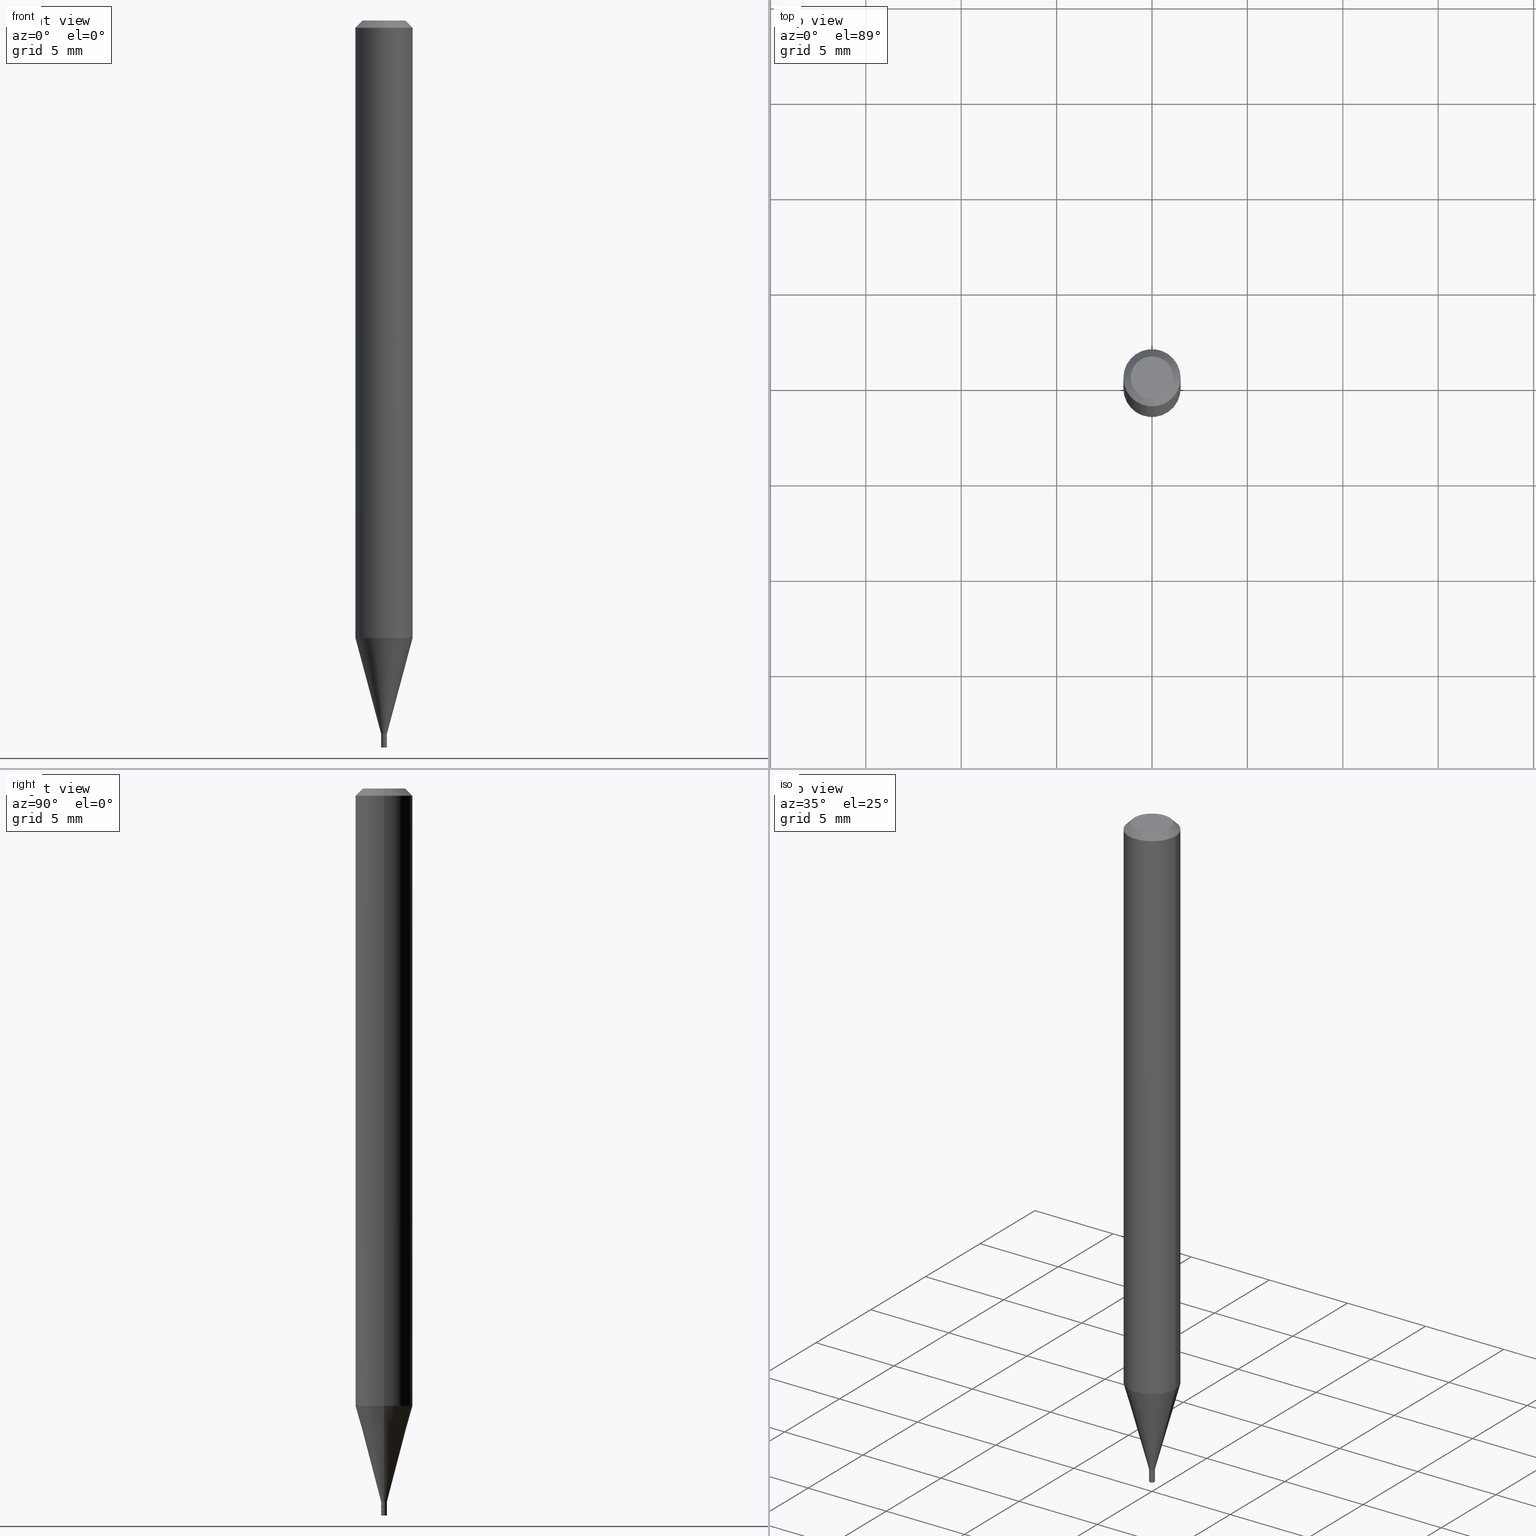
[diagram: canonical four-view strip — front | top / right | iso, engineering-drawing reading convention]
A machine part, canonical four-view strip (front | top / right | iso — engineering-drawing reading convention). The complete STEP part file that produces these views, byte-faithful:
ISO-10303-21;
HEADER;
FILE_DESCRIPTION (( 'STEP AP203' ),
    '1' );
FILE_NAME ('02802.STEP',
    '2024-03-18T21:39:55',
    ( '' ),
    ( '' ),
    'SwSTEP 2.0',
    'SolidWorks 2023',
    '' );
FILE_SCHEMA (( 'CONFIG_CONTROL_DESIGN' ));
ENDSEC;

DATA;
#1 = CARTESIAN_POINT ( 'NONE',  ( 3.576687321579069994E-29, -5.368277968210015545E-15, -1.500000000000000222 ) ) ;
#2 = FACE_OUTER_BOUND ( 'NONE', #52, .T. ) ;
#3 = EDGE_CURVE ( 'NONE', #388, #336, #301, .T. ) ;
#4 = VERTEX_POINT ( 'NONE', #42 ) ;
#5 = VECTOR ( 'NONE', #249, 39.37007874015748143 ) ;
#6 = DATE_TIME_ROLE ( 'creation_date' ) ;
#7 = DATE_AND_TIME ( #403, #11 ) ;
#8 = FACE_OUTER_BOUND ( 'NONE', #331, .T. ) ;
#9 = CARTESIAN_POINT ( 'NONE',  ( -0.05904999999999999832, 3.599717260347268549E-16, -0.01499999999999999944 ) ) ;
#10 = AXIS2_PLACEMENT_3D ( 'NONE', #203, #418, #379 ) ;
#11 = LOCAL_TIME ( 17, 39, 55.00000000000000000, #337 ) ;
#12 = VERTEX_POINT ( 'NONE', #368 ) ;
#13 = LINE ( 'NONE', #9, #46 ) ;
#14 = APPLICATION_CONTEXT ( 'configuration controlled 3d designs of mechanical parts and assemblies' ) ;
#15 = VECTOR ( 'NONE', #371, 39.37007874015748143 ) ;
#16 = CARTESIAN_POINT ( 'NONE',  ( 3.075995059520799729E-16, 0.04404999999999999888, 2.027928670396002547E-16 ) ) ;
#17 = CIRCLE ( 'NONE', #238, 0.005899999999999920065 ) ;
#18 = ORIENTED_EDGE ( 'NONE', *, *, #384, .T. ) ;
#19 = PRODUCT_DEFINITION ( 'UNKNOWN', '', #41, #71 ) ;
#20 = PERSON_AND_ORGANIZATION ( #442, #383 ) ;
#21 = VERTEX_POINT ( 'NONE', #438 ) ;
#22 = APPROVAL_STATUS ( 'not_yet_approved' ) ;
#23 = ORIENTED_EDGE ( 'NONE', *, *, #305, .T. ) ;
#24 = ORIENTED_EDGE ( 'NONE', *, *, #305, .F. ) ;
#25 = APPROVAL_PERSON_ORGANIZATION ( #300, #228, #204 ) ;
#26 = LENGTH_MEASURE_WITH_UNIT ( LENGTH_MEASURE( 0.02539999999999999897 ), #356 );
#27 = DIRECTION ( 'NONE',  ( 1.000000000000000000, -6.982962677686265922E-15, 4.876176775795935793E-29 ) ) ;
#28 = DIRECTION ( 'NONE',  ( -2.445468806185136597E-29, 3.491481338843145583E-15, 1.000000000000000000 ) ) ;
#29 = CARTESIAN_POINT ( 'NONE',  ( 3.668203209277705088E-31, -5.237222008264718399E-17, -0.01499999999999999944 ) ) ;
#30 = DIRECTION ( 'NONE',  ( -2.445468806185136597E-29, 3.491481338843145583E-15, 1.000000000000000000 ) ) ;
#31 = CARTESIAN_POINT ( 'NONE',  ( 3.624918411408228243E-29, -5.175422788567195373E-15, -1.482300000000000173 ) ) ;
#32 = AXIS2_PLACEMENT_3D ( 'NONE', #188, #289, #72 ) ;
#33 = CIRCLE ( 'NONE', #219, 0.005899999999999922667 ) ;
#34 = CC_DESIGN_PERSON_AND_ORGANIZATION_ASSIGNMENT ( #198, #166, ( #41 ) ) ;
#35 = LINE ( 'NONE', #330, #452 ) ;
#36 = EDGE_CURVE ( 'NONE', #108, #239, #361, .T. ) ;
#37 = ORIENTED_EDGE ( 'NONE', *, *, #36, .T. ) ;
#38 = EDGE_LOOP ( 'NONE', ( #314, #416, #186, #319 ) ) ;
#39 = EDGE_CURVE ( 'NONE', #215, #179, #400, .T. ) ;
#40 = CIRCLE ( 'NONE', #10, 0.005900000000000000730 ) ;
#41 = PRODUCT_DEFINITION_FORMATION_WITH_SPECIFIED_SOURCE ( 'ANY', '', #458, .NOT_KNOWN. ) ;
#42 = CARTESIAN_POINT ( 'NONE',  ( -0.005400000000000000286, -5.134404253662039043E-15, -1.482300000000000173 ) ) ;
#43 = ORIENTED_EDGE ( 'NONE', *, *, #273, .T. ) ;
#44 = DIRECTION ( 'NONE',  ( 1.000000000000000000, -6.982962677686312464E-15, 0.000000000000000000 ) ) ;
#45 = CARTESIAN_POINT ( 'NONE',  ( 3.599730082704520905E-29, -5.139460530777110821E-15, -1.471999999999999975 ) ) ;
#46 = VECTOR ( 'NONE', #127, 39.37007874015748854 ) ;
#47 =( GEOMETRIC_REPRESENTATION_CONTEXT ( 3 ) GLOBAL_UNCERTAINTY_ASSIGNED_CONTEXT ( ( #148 ) ) GLOBAL_UNIT_ASSIGNED_CONTEXT ( ( #221, #151, #281 ) ) REPRESENTATION_CONTEXT ( 'NONE', 'WORKASPACE' ) );
#48 = EDGE_CURVE ( 'NONE', #104, #179, #13, .T. ) ;
#49 = DATE_AND_TIME ( #162, #290 ) ;
#50 = FACE_OUTER_BOUND ( 'NONE', #95, .T. ) ;
#51 = EDGE_LOOP ( 'NONE', ( #274, #455 ) ) ;
#52 = EDGE_LOOP ( 'NONE', ( #410, #443 ) ) ;
#53 = DIRECTION ( 'NONE',  ( -2.445468806185136597E-29, 3.491481338843145583E-15, 1.000000000000000000 ) ) ;
#54 = EDGE_CURVE ( 'NONE', #175, #21, #165, .T. ) ;
#55 = EDGE_CURVE ( 'NONE', #108, #21, #270, .T. ) ;
#56 = EDGE_CURVE ( 'NONE', #104, #427, #451, .T. ) ;
#57 = CIRCLE ( 'NONE', #253, 0.005900000000000000730 ) ;
#58 = DIRECTION ( 'NONE',  ( 1.000000000000000000, -6.982962677686265922E-15, 4.876176775795935793E-29 ) ) ;
#59 = AXIS2_PLACEMENT_3D ( 'NONE', #110, #213, #389 ) ;
#60 = ORIENTED_EDGE ( 'NONE', *, *, #273, .F. ) ;
#61 = EDGE_LOOP ( 'NONE', ( #122, #212, #247, #262 ) ) ;
#62 = DIRECTION ( 'NONE',  ( -2.445468806185136597E-29, 3.491481338843145583E-15, 1.000000000000000000 ) ) ;
#63 = EDGE_LOOP ( 'NONE', ( #91, #399, #136, #354 ) ) ;
#64 = CC_DESIGN_PERSON_AND_ORGANIZATION_ASSIGNMENT ( #265, #125, ( #41 ) ) ;
#65 = DIRECTION ( 'NONE',  ( -1.000000000000000000, 6.982962677686265922E-15, -4.876176775795935793E-29 ) ) ;
#66 = MECHANICAL_CONTEXT ( 'NONE', #338, 'mechanical' ) ;
#67 = CARTESIAN_POINT ( 'NONE',  ( -0.005899999999999920065, -4.562429276026358128E-15, -1.471999999999999975 ) ) ;
#68 = AXIS2_PLACEMENT_3D ( 'NONE', #369, #343, #44 ) ;
#69 = CIRCLE ( 'NONE', #447, 0.005400000000000000286 ) ;
#70 = CARTESIAN_POINT ( 'NONE',  ( 3.624918411408228243E-29, -5.175422788567195373E-15, -1.482300000000000173 ) ) ;
#71 = DESIGN_CONTEXT ( 'detailed design', #14, 'design' ) ;
#72 = DIRECTION ( 'NONE',  ( 1.000000000000000000, -6.982962677686266711E-15, 4.876176775795935793E-29 ) ) ;
#73 = DATE_AND_TIME ( #121, #254 ) ;
#74 = CARTESIAN_POINT ( 'NONE',  ( 3.623695677005136002E-29, -5.173677047897773869E-15, -1.481800000000000228 ) ) ;
#75 = EDGE_CURVE ( 'NONE', #12, #388, #181, .T. ) ;
#76 = DIRECTION ( 'NONE',  ( 1.000000000000000000, -6.982962677686217012E-15, 0.000000000000000000 ) ) ;
#77 = MANIFOLD_SOLID_BREP ( 'Body-Move/Copy2[2]', #311 ) ;
#78 = ORIENTED_EDGE ( 'NONE', *, *, #109, .F. ) ;
#79 = DIRECTION ( 'NONE',  ( -2.445468806185136597E-29, 3.491481338843145583E-15, 1.000000000000000000 ) ) ;
#80 = AXIS2_PLACEMENT_3D ( 'NONE', #1, #390, #27 ) ;
#81 = CC_DESIGN_SECURITY_CLASSIFICATION ( #373, ( #41 ) ) ;
#82 = EDGE_CURVE ( 'NONE', #4, #348, #101, .T. ) ;
#83 = ORIENTED_EDGE ( 'NONE', *, *, #364, .F. ) ;
#84 = PERSON_AND_ORGANIZATION ( #442, #383 ) ;
#85 = MANIFOLD_SOLID_BREP ( 'Body-Move/Copy2[1]', #406 ) ;
#86 = SHAPE_DEFINITION_REPRESENTATION ( #413, #170 ) ;
#87 = ORIENTED_EDGE ( 'NONE', *, *, #445, .F. ) ;
#88 = PERSON_AND_ORGANIZATION ( #442, #383 ) ;
#89 = VERTEX_POINT ( 'NONE', #130 ) ;
#90 = CARTESIAN_POINT ( 'NONE',  ( -1.744072257528158594E-44, 2.490072956707589401E-30, 7.131852400312816162E-16 ) ) ;
#91 = ORIENTED_EDGE ( 'NONE', *, *, #236, .F. ) ;
#92 = PERSON_AND_ORGANIZATION_ROLE ( 'classification_officer' ) ;
#93 = EDGE_CURVE ( 'NONE', #336, #309, #40, .T. ) ;
#94 = DIRECTION ( 'NONE',  ( -2.445468806185136597E-29, 3.491481338843145583E-15, 1.000000000000000000 ) ) ;
#95 = EDGE_LOOP ( 'NONE', ( #457, #43 ) ) ;
#96 = PLANE ( 'NONE',  #185 ) ;
#97 = EDGE_LOOP ( 'NONE', ( #402, #376, #378, #386 ) ) ;
#98 = ADVANCED_FACE ( 'NONE', ( #341 ), #99, .T. ) ;
#99 = CYLINDRICAL_SURFACE ( 'NONE', #115, 0.05904999999999999832 ) ;
#100 = DIRECTION ( 'NONE',  ( -1.000000000000000000, 6.982962677686265922E-15, -4.876176775795935793E-29 ) ) ;
#101 = CIRCLE ( 'NONE', #232, 0.005400000000000000286 ) ;
#102 = DIRECTION ( 'NONE',  ( -2.445468806185136877E-29, 3.491481338843145188E-15, 1.000000000000000000 ) ) ;
#103 = VECTOR ( 'NONE', #359, 39.37007874015748854 ) ;
#104 = VERTEX_POINT ( 'NONE', #180 ) ;
#105 = EDGE_CURVE ( 'NONE', #309, #336, #57, .T. ) ;
#106 = CARTESIAN_POINT ( 'NONE',  ( 4.119947979838522629E-17, 0.005899999999994825182, -1.482300000000000173 ) ) ;
#107 = DIRECTION ( 'NONE',  ( -2.445468806185136597E-29, 3.491481338843145583E-15, 1.000000000000000000 ) ) ;
#108 = VERTEX_POINT ( 'NONE', #295 ) ;
#109 = EDGE_CURVE ( 'NONE', #89, #239, #437, .T. ) ;
#110 = CARTESIAN_POINT ( 'NONE',  ( 0.000000000000000000, 0.000000000000000000, 0.000000000000000000 ) ) ;
#111 = DIRECTION ( 'NONE',  ( -2.445468806185136597E-29, 3.491481338843145583E-15, 1.000000000000000000 ) ) ;
#112 = FACE_OUTER_BOUND ( 'NONE', #230, .T. ) ;
#113 = LINE ( 'NONE', #358, #415 ) ;
#114 = DIMENSIONAL_EXPONENTS ( 1.000000000000000000, 0.000000000000000000, 0.000000000000000000, 0.000000000000000000, 0.000000000000000000, 0.000000000000000000, 0.000000000000000000 ) ;
#115 = AXIS2_PLACEMENT_3D ( 'NONE', #241, #53, #396 ) ;
#116 = AXIS2_PLACEMENT_3D ( 'NONE', #214, #119, #353 ) ;
#117 = CC_DESIGN_PERSON_AND_ORGANIZATION_ASSIGNMENT ( #20, #210, ( #458 ) ) ;
#118 = CARTESIAN_POINT ( 'NONE',  ( 3.623695677005136002E-29, -5.173677047897773869E-15, -1.481800000000000228 ) ) ;
#119 = DIRECTION ( 'NONE',  ( -2.445468806185136597E-29, 3.491481338843145583E-15, 1.000000000000000000 ) ) ;
#120 = DIRECTION ( 'NONE',  ( -2.445468806185136877E-29, 3.491481338843145188E-15, 1.000000000000000000 ) ) ;
#121 = CALENDAR_DATE ( 2024, 18, 3 ) ;
#122 = ORIENTED_EDGE ( 'NONE', *, *, #408, .F. ) ;
#123 = CARTESIAN_POINT ( 'NONE',  ( -0.005899999999999921800, 4.192202140984535532E-17, -2.902171703250355972E-31 ) ) ;
#124 = CONICAL_SURFACE ( 'NONE', #153, 0.05904999999999999832, 0.7853981633974246312 ) ;
#125 = PERSON_AND_ORGANIZATION_ROLE ( 'creator' ) ;
#126 = AXIS2_PLACEMENT_3D ( 'NONE', #90, #163, #197 ) ;
#127 = DIRECTION ( 'NONE',  ( -0.7071067811865306973, 2.468850131082080750E-15, -0.7071067811865642261 ) ) ;
#128 = DIRECTION ( 'NONE',  ( 0.2588190451025215721, 1.565188264969619995E-15, 0.9659258262890679791 ) ) ;
#129 = ORIENTED_EDGE ( 'NONE', *, *, #199, .T. ) ;
#130 = CARTESIAN_POINT ( 'NONE',  ( -0.005899999999999922667, -5.131755026487928631E-15, -1.481800000000000228 ) ) ;
#131 = AXIS2_PLACEMENT_3D ( 'NONE', #141, #397, #317 ) ;
#132 = ORIENTED_EDGE ( 'NONE', *, *, #109, .T. ) ;
#133 = DIRECTION ( 'NONE',  ( 1.000000000000000000, -6.982962677686273021E-15, 0.000000000000000000 ) ) ;
#134 = DIRECTION ( 'NONE',  ( 0.000000000000000000, 0.000000000000000000, 1.000000000000000000 ) ) ;
#135 = CARTESIAN_POINT ( 'NONE',  ( -0.05904999999999999832, 4.195754854663391478E-16, -2.904631170795521892E-30 ) ) ;
#136 = ORIENTED_EDGE ( 'NONE', *, *, #164, .T. ) ;
#137 = EDGE_CURVE ( 'NONE', #175, #179, #242, .T. ) ;
#138 = APPLICATION_PROTOCOL_DEFINITION ( 'international standard', 'config_control_design', 1994, #14 ) ;
#139 = ORIENTED_EDGE ( 'NONE', *, *, #436, .T. ) ;
#140 = VECTOR ( 'NONE', #128, 39.37007874015748143 ) ;
#141 = CARTESIAN_POINT ( 'NONE',  ( 3.668203209277705088E-31, -5.237222008264718399E-17, -0.01499999999999999944 ) ) ;
#142 = DIRECTION ( 'NONE',  ( 1.000000000000000000, -6.982962677686267499E-15, 4.876176775795935793E-29 ) ) ;
#143 = EDGE_LOOP ( 'NONE', ( #316, #429 ) ) ;
#144 = ADVANCED_FACE ( 'NONE', ( #234 ), #372, .T. ) ;
#145 = ADVANCED_FACE ( 'NONE', ( #200 ), #345, .T. ) ;
#146 = PLANE ( 'NONE',  #407 ) ;
#147 = DIRECTION ( 'NONE',  ( -1.000000000000000000, 6.982962677686266711E-15, 0.000000000000000000 ) ) ;
#148 = UNCERTAINTY_MEASURE_WITH_UNIT (LENGTH_MEASURE( 1.000000000000000082E-05 ), #221, 'distance_accuracy_value', 'NONE');
#149 = DIRECTION ( 'NONE',  ( 2.438088387897960049E-29, -3.491481338843145188E-15, -1.000000000000000000 ) ) ;
#150 = DIRECTION ( 'NONE',  ( 1.000000000000000000, -6.982962677686273021E-15, 0.000000000000000000 ) ) ;
#151 =( NAMED_UNIT ( * ) PLANE_ANGLE_UNIT ( ) SI_UNIT ( $, .RADIAN. ) );
#152 = DIRECTION ( 'NONE',  ( 1.000000000000000000, -6.982962677686266711E-15, 0.000000000000000000 ) ) ;
#153 = AXIS2_PLACEMENT_3D ( 'NONE', #191, #287, #147 ) ;
#154 = VECTOR ( 'NONE', #357, 39.37007874015748143 ) ;
#155 = CARTESIAN_POINT ( 'NONE',  ( 0.04404999999999999888, -3.798447818264447753E-16, 7.131852400312840814E-16 ) ) ;
#156 = CIRCLE ( 'NONE', #126, 0.04404999999999999888 ) ;
#157 = CIRCLE ( 'NONE', #297, 0.05904999999999999832 ) ;
#158 = CIRCLE ( 'NONE', #401, 0.005900000000000000730 ) ;
#159 = ADVANCED_FACE ( 'NONE', ( #8 ), #283, .T. ) ;
#160 = ORIENTED_EDGE ( 'NONE', *, *, #355, .T. ) ;
#161 = APPROVAL_STATUS ( 'not_yet_approved' ) ;
#162 = CALENDAR_DATE ( 2024, 18, 3 ) ;
#163 = DIRECTION ( 'NONE',  ( -2.445468806185136597E-29, 3.491481338843145583E-15, 1.000000000000000000 ) ) ;
#164 = EDGE_CURVE ( 'NONE', #348, #244, #421, .T. ) ;
#165 = CIRCLE ( 'NONE', #195, 0.05904999999999999832 ) ;
#166 = PERSON_AND_ORGANIZATION_ROLE ( 'design_supplier' ) ;
#167 = APPROVAL_PERSON_ORGANIZATION ( #88, #387, #306 ) ;
#168 = ORIENTED_EDGE ( 'NONE', *, *, #355, .F. ) ;
#169 = SECURITY_CLASSIFICATION_LEVEL ( 'unclassified' ) ;
#170 = ADVANCED_BREP_SHAPE_REPRESENTATION ( '02802', ( #85, #77, #464 ), #47 ) ;
#171 = ORIENTED_EDGE ( 'NONE', *, *, #220, .T. ) ;
#172 = CARTESIAN_POINT ( 'NONE',  ( 3.668203209277704895E-29, -5.237222008264718177E-15, -1.500000000000000222 ) ) ;
#173 = DIRECTION ( 'NONE',  ( 2.438088387897960049E-29, -3.491481338843145188E-15, -1.000000000000000000 ) ) ;
#174 = CARTESIAN_POINT ( 'NONE',  ( -0.05904999999999999138, -4.027320042685452251E-15, -1.273641499577714553 ) ) ;
#175 = VERTEX_POINT ( 'NONE', #174 ) ;
#176 = ORIENTED_EDGE ( 'NONE', *, *, #36, .F. ) ;
#177 = APPROVAL_ROLE ( '' ) ;
#178 = DIRECTION ( 'NONE',  ( 1.000000000000000000, -6.982962677686312464E-15, 0.000000000000000000 ) ) ;
#179 = VERTEX_POINT ( 'NONE', #381 ) ;
#180 = CARTESIAN_POINT ( 'NONE',  ( -0.04404999999999999888, 3.337856159934046958E-16, 7.131852400312794468E-16 ) ) ;
#181 = CIRCLE ( 'NONE', #216, 0.005900000000000000730 ) ;
#182 = DIRECTION ( 'NONE',  ( 1.000000000000000000, -6.982962677686217012E-15, 0.000000000000000000 ) ) ;
#183 = APPLICATION_PROTOCOL_DEFINITION ( 'international standard', 'config_control_design', 1994, #338 ) ;
#184 = FACE_OUTER_BOUND ( 'NONE', #446, .T. ) ;
#185 = AXIS2_PLACEMENT_3D ( 'NONE', #206, #344, #58 ) ;
#186 = ORIENTED_EDGE ( 'NONE', *, *, #3, .T. ) ;
#187 = FACE_OUTER_BOUND ( 'NONE', #205, .T. ) ;
#188 = CARTESIAN_POINT ( 'NONE',  ( 0.000000000000000000, 0.000000000000000000, 0.000000000000000000 ) ) ;
#189 = CARTESIAN_POINT ( 'NONE',  ( 0.05904999999999999832, -4.123439461173740327E-16, 2.879382386107500220E-30 ) ) ;
#190 = DATE_AND_TIME ( #460, #196 ) ;
#191 = CARTESIAN_POINT ( 'NONE',  ( 3.668203209277705088E-31, -5.237222008264718399E-17, -0.01499999999999999944 ) ) ;
#192 = CARTESIAN_POINT ( 'NONE',  ( 3.599730082704520905E-29, -5.139460530777110821E-15, -1.471999999999999975 ) ) ;
#193 = CC_DESIGN_DATE_AND_TIME_ASSIGNMENT ( #73, #6, ( #19 ) ) ;
#194 = ADVANCED_FACE ( 'NONE', ( #211 ), #208, .T. ) ;
#195 = AXIS2_PLACEMENT_3D ( 'NONE', #448, #313, #133 ) ;
#196 = LOCAL_TIME ( 17, 39, 55.00000000000000000, #318 ) ;
#197 = DIRECTION ( 'NONE',  ( 1.000000000000000000, -6.982962677686265922E-15, 4.957392940945096353E-29 ) ) ;
#198 = PERSON_AND_ORGANIZATION ( #442, #383 ) ;
#199 = EDGE_CURVE ( 'NONE', #12, #309, #284, .T. ) ;
#200 = FACE_OUTER_BOUND ( 'NONE', #264, .T. ) ;
#201 = CONICAL_SURFACE ( 'NONE', #266, 0.005400000000000000286, 0.7853981633974718157 ) ;
#202 = PLANE ( 'NONE',  #335 ) ;
#203 = CARTESIAN_POINT ( 'NONE',  ( 3.624918411408228243E-29, -5.175422788567195373E-15, -1.482300000000000173 ) ) ;
#204 = APPROVAL_ROLE ( '' ) ;
#205 = EDGE_LOOP ( 'NONE', ( #139, #333, #83, #462 ) ) ;
#206 = CARTESIAN_POINT ( 'NONE',  ( 3.624918411408228243E-29, -5.175422788567195373E-15, -1.482300000000000173 ) ) ;
#207 = AXIS2_PLACEMENT_3D ( 'NONE', #118, #79, #432 ) ;
#208 = CYLINDRICAL_SURFACE ( 'NONE', #328, 0.005900000000000000730 ) ;
#209 = ORIENTED_EDGE ( 'NONE', *, *, #339, .T. ) ;
#210 = PERSON_AND_ORGANIZATION_ROLE ( 'design_owner' ) ;
#211 = FACE_OUTER_BOUND ( 'NONE', #38, .T. ) ;
#212 = ORIENTED_EDGE ( 'NONE', *, *, #56, .F. ) ;
#213 = DIRECTION ( 'NONE',  ( -2.445468806185136597E-29, 3.491481338843145583E-15, 1.000000000000000000 ) ) ;
#214 = CARTESIAN_POINT ( 'NONE',  ( 0.000000000000000000, 0.000000000000000000, 0.000000000000000000 ) ) ;
#215 = VERTEX_POINT ( 'NONE', #256 ) ;
#216 = AXIS2_PLACEMENT_3D ( 'NONE', #172, #454, #450 ) ;
#217 = APPROVAL ( #22, 'UNSPECIFIED' ) ;
#218 = DIRECTION ( 'NONE',  ( -2.445468806185136597E-29, 3.491481338843145583E-15, 1.000000000000000000 ) ) ;
#219 = AXIS2_PLACEMENT_3D ( 'NONE', #74, #286, #260 ) ;
#220 = EDGE_CURVE ( 'NONE', #21, #175, #157, .T. ) ;
#221 =( CONVERSION_BASED_UNIT ( 'INCH', #26 ) LENGTH_UNIT ( ) NAMED_UNIT ( #114 ) );
#222 = DIRECTION ( 'NONE',  ( -2.445468806185136597E-29, 3.491481338843145583E-15, 1.000000000000000000 ) ) ;
#223 = CARTESIAN_POINT ( 'NONE',  ( 0.005900000000000000730, -5.278421488063067239E-15, -1.500000000000000222 ) ) ;
#224 = CARTESIAN_POINT ( 'NONE',  ( 0.005899999999999922667, -5.214876527696122931E-15, -1.481800000000000228 ) ) ;
#225 = ADVANCED_FACE ( 'NONE', ( #325 ), #124, .T. ) ;
#226 = LINE ( 'NONE', #321, #154 ) ;
#227 = AXIS2_PLACEMENT_3D ( 'NONE', #461, #411, #178 ) ;
#228 = APPROVAL ( #161, 'UNSPECIFIED' ) ;
#229 = ADVANCED_FACE ( 'NONE', ( #398 ), #252, .F. ) ;
#230 = EDGE_LOOP ( 'NONE', ( #78, #18, #160, #87 ) ) ;
#231 = CARTESIAN_POINT ( 'NONE',  ( 0.005900000000000000730, -4.119947979834898183E-17, 2.876944297719602388E-31 ) ) ;
#232 = AXIS2_PLACEMENT_3D ( 'NONE', #414, #420, #374 ) ;
#233 = ORIENTED_EDGE ( 'NONE', *, *, #55, .F. ) ;
#234 = FACE_OUTER_BOUND ( 'NONE', #282, .T. ) ;
#235 = DIRECTION ( 'NONE',  ( -2.445468806185136597E-29, 3.491481338843145583E-15, 1.000000000000000000 ) ) ;
#236 = EDGE_CURVE ( 'NONE', #4, #89, #113, .T. ) ;
#237 = AXIS2_PLACEMENT_3D ( 'NONE', #246, #235, #267 ) ;
#238 = AXIS2_PLACEMENT_3D ( 'NONE', #192, #28, #255 ) ;
#239 = VERTEX_POINT ( 'NONE', #67 ) ;
#240 = ORIENTED_EDGE ( 'NONE', *, *, #39, .F. ) ;
#241 = CARTESIAN_POINT ( 'NONE',  ( 0.000000000000000000, 0.000000000000000000, 0.000000000000000000 ) ) ;
#242 = LINE ( 'NONE', #135, #367 ) ;
#243 = CC_DESIGN_PERSON_AND_ORGANIZATION_ASSIGNMENT ( #84, #258, ( #19 ) ) ;
#244 = VERTEX_POINT ( 'NONE', #224 ) ;
#245 = CONICAL_SURFACE ( 'NONE', #417, 0.005400000000000000286, 0.7853981633974718157 ) ;
#246 = CARTESIAN_POINT ( 'NONE',  ( 0.000000000000000000, 0.000000000000000000, 0.000000000000000000 ) ) ;
#247 = ORIENTED_EDGE ( 'NONE', *, *, #48, .T. ) ;
#248 = LINE ( 'NONE', #288, #103 ) ;
#249 = DIRECTION ( 'NONE',  ( -2.445468806185136877E-29, 3.491481338843145188E-15, 1.000000000000000000 ) ) ;
#250 = ORIENTED_EDGE ( 'NONE', *, *, #3, .F. ) ;
#251 = CARTESIAN_POINT ( 'NONE',  ( 0.005900000000000000730, -5.216622268365544435E-15, -1.482300000000000173 ) ) ;
#252 = PLANE ( 'NONE',  #80 ) ;
#253 = AXIS2_PLACEMENT_3D ( 'NONE', #70, #30, #76 ) ;
#254 = LOCAL_TIME ( 17, 39, 55.00000000000000000, #435 ) ;
#255 = DIRECTION ( 'NONE',  ( 1.000000000000000000, -6.982962677686312464E-15, 0.000000000000000000 ) ) ;
#256 = CARTESIAN_POINT ( 'NONE',  ( 0.05904999999999999832, -4.647161662000212105E-16, -0.01499999999999999944 ) ) ;
#257 = CYLINDRICAL_SURFACE ( 'NONE', #59, 0.005899999999999921800 ) ;
#258 = PERSON_AND_ORGANIZATION_ROLE ( 'creator' ) ;
#259 = ADVANCED_FACE ( 'NONE', ( #184 ), #322, .T. ) ;
#260 = DIRECTION ( 'NONE',  ( 1.000000000000000000, -6.982962677686309309E-15, 0.000000000000000000 ) ) ;
#261 = EDGE_CURVE ( 'NONE', #179, #215, #303, .T. ) ;
#262 = ORIENTED_EDGE ( 'NONE', *, *, #261, .T. ) ;
#263 = DATE_TIME_ROLE ( 'classification_date' ) ;
#264 = EDGE_LOOP ( 'NONE', ( #209, #129, #422, #250 ) ) ;
#265 = PERSON_AND_ORGANIZATION ( #442, #383 ) ;
#266 = AXIS2_PLACEMENT_3D ( 'NONE', #465, #62, #428 ) ;
#267 = DIRECTION ( 'NONE',  ( 1.000000000000000000, -6.982962677686267499E-15, 4.876176775795935793E-29 ) ) ;
#268 = APPROVAL_STATUS ( 'not_yet_approved' ) ;
#269 = DIRECTION ( 'NONE',  ( -2.445468806185136597E-29, 3.491481338843145583E-15, 1.000000000000000000 ) ) ;
#270 = LINE ( 'NONE', #449, #140 ) ;
#271 = DATE_AND_TIME ( #298, #362 ) ;
#272 = ADVANCED_FACE ( 'NONE', ( #292 ), #433, .T. ) ;
#273 = EDGE_CURVE ( 'NONE', #427, #104, #156, .T. ) ;
#274 = ORIENTED_EDGE ( 'NONE', *, *, #436, .F. ) ;
#275 = CARTESIAN_POINT ( 'NONE',  ( -1.744072257528158594E-44, 2.490072956707589401E-30, 7.131852400312816162E-16 ) ) ;
#276 = DIRECTION ( 'NONE',  ( 1.000000000000000000, -6.982962677686266711E-15, 0.000000000000000000 ) ) ;
#277 = ADVANCED_FACE ( 'NONE', ( #315 ), #245, .T. ) ;
#278 = DIRECTION ( 'NONE',  ( 1.000000000000000000, 0.000000000000000000, 0.000000000000000000 ) ) ;
#279 = DIRECTION ( 'NONE',  ( -2.445468806185136877E-29, 3.491481338843145188E-15, 1.000000000000000000 ) ) ;
#280 = CARTESIAN_POINT ( 'NONE',  ( 3.624918411408228243E-29, -5.175422788567195373E-15, -1.482300000000000173 ) ) ;
#281 =( NAMED_UNIT ( * ) SI_UNIT ( $, .STERADIAN. ) SOLID_ANGLE_UNIT ( ) );
#282 = EDGE_LOOP ( 'NONE', ( #24, #310, #285, #332 ) ) ;
#283 = CONICAL_SURFACE ( 'NONE', #227, 0.005899999999999920065, 0.2617993877991502960 ) ;
#284 = LINE ( 'NONE', #426, #5 ) ;
#285 = ORIENTED_EDGE ( 'NONE', *, *, #55, .T. ) ;
#286 = DIRECTION ( 'NONE',  ( -2.445468806185136597E-29, 3.491481338843145583E-15, 1.000000000000000000 ) ) ;
#287 = DIRECTION ( 'NONE',  ( 2.445468806185136597E-29, -3.491481338843145583E-15, -1.000000000000000000 ) ) ;
#288 = CARTESIAN_POINT ( 'NONE',  ( 0.05904999999999999832, -4.574846268510561447E-16, -0.01499999999999999944 ) ) ;
#289 = DIRECTION ( 'NONE',  ( -2.445468806185136597E-29, 3.491481338843145583E-15, 1.000000000000000000 ) ) ;
#290 = LOCAL_TIME ( 17, 39, 55.00000000000000000, #444 ) ;
#291 = CARTESIAN_POINT ( 'NONE',  ( -0.005900000000000000730, -5.164400377006110353E-15, -1.482300000000000173 ) ) ;
#292 = FACE_OUTER_BOUND ( 'NONE', #97, .T. ) ;
#293 = PRODUCT_RELATED_PRODUCT_CATEGORY ( 'detail', '', ( #458 ) ) ;
#294 = ADVANCED_FACE ( 'NONE', ( #380 ), #96, .F. ) ;
#295 = CARTESIAN_POINT ( 'NONE',  ( 0.005899999999999920065, -5.180660010575459883E-15, -1.471999999999999975 ) ) ;
#296 = ORIENTED_EDGE ( 'NONE', *, *, #364, .T. ) ;
#297 = AXIS2_PLACEMENT_3D ( 'NONE', #327, #111, #150 ) ;
#298 = CALENDAR_DATE ( 2024, 18, 3 ) ;
#299 = ADVANCED_FACE ( 'NONE', ( #50 ), #202, .F. ) ;
#300 = PERSON_AND_ORGANIZATION ( #442, #383 ) ;
#301 = LINE ( 'NONE', #231, #340 ) ;
#302 = APPROVAL_DATE_TIME ( #7, #387 ) ;
#303 = CIRCLE ( 'NONE', #463, 0.05904999999999999832 ) ;
#304 = CC_DESIGN_APPROVAL ( #228, ( #41 ) ) ;
#305 = EDGE_CURVE ( 'NONE', #239, #175, #226, .T. ) ;
#306 = APPROVAL_ROLE ( '' ) ;
#307 = ORIENTED_EDGE ( 'NONE', *, *, #39, .T. ) ;
#308 = DIRECTION ( 'NONE',  ( -2.445468806185136597E-29, 3.491481338843145583E-15, 1.000000000000000000 ) ) ;
#309 = VERTEX_POINT ( 'NONE', #291 ) ;
#310 = ORIENTED_EDGE ( 'NONE', *, *, #445, .T. ) ;
#311 = CLOSED_SHELL ( 'NONE', ( #259, #352, #392, #98, #159, #144, #272, #225, #299, #294, #277, #424 ) ) ;
#312 = CC_DESIGN_APPROVAL ( #387, ( #373 ) ) ;
#313 = DIRECTION ( 'NONE',  ( -2.445468806185136597E-29, 3.491481338843145583E-15, 1.000000000000000000 ) ) ;
#314 = ORIENTED_EDGE ( 'NONE', *, *, #199, .F. ) ;
#315 = FACE_OUTER_BOUND ( 'NONE', #63, .T. ) ;
#316 = ORIENTED_EDGE ( 'NONE', *, *, #339, .F. ) ;
#317 = DIRECTION ( 'NONE',  ( -1.000000000000000000, 6.982962677686266711E-15, 0.000000000000000000 ) ) ;
#318 = COORDINATED_UNIVERSAL_TIME_OFFSET ( 5, 0, .BEHIND. ) ;
#319 = ORIENTED_EDGE ( 'NONE', *, *, #105, .F. ) ;
#320 = CC_DESIGN_APPROVAL ( #217, ( #19 ) ) ;
#321 = CARTESIAN_POINT ( 'NONE',  ( -0.005899999999999920065, -5.097538509367265583E-15, -1.471999999999999975 ) ) ;
#322 = CYLINDRICAL_SURFACE ( 'NONE', #32, 0.005899999999999921800 ) ;
#323 = CC_DESIGN_PERSON_AND_ORGANIZATION_ASSIGNMENT ( #409, #92, ( #373 ) ) ;
#324 = DIRECTION ( 'NONE',  ( -2.445468806185136877E-29, 3.491481338843145188E-15, 1.000000000000000000 ) ) ;
#325 = FACE_OUTER_BOUND ( 'NONE', #61, .T. ) ;
#326 = APPROVAL_DATE_TIME ( #190, #217 ) ;
#327 = CARTESIAN_POINT ( 'NONE',  ( 3.114650557480160818E-29, -4.446895528151790166E-15, -1.273641499577714553 ) ) ;
#328 = AXIS2_PLACEMENT_3D ( 'NONE', #351, #107, #142 ) ;
#329 = VECTOR ( 'NONE', #120, 39.37007874015748143 ) ;
#330 = CARTESIAN_POINT ( 'NONE',  ( 0.005899999999999921800, -4.119947979834842716E-17, 2.876944297719563852E-31 ) ) ;
#331 = EDGE_LOOP ( 'NONE', ( #37, #23, #419, #233 ) ) ;
#332 = ORIENTED_EDGE ( 'NONE', *, *, #54, .F. ) ;
#333 = ORIENTED_EDGE ( 'NONE', *, *, #236, .T. ) ;
#334 = AXIS2_PLACEMENT_3D ( 'NONE', #412, #94, #276 ) ;
#335 = AXIS2_PLACEMENT_3D ( 'NONE', #16, #173, #100 ) ;
#336 = VERTEX_POINT ( 'NONE', #251 ) ;
#337 = COORDINATED_UNIVERSAL_TIME_OFFSET ( 5, 0, .BEHIND. ) ;
#338 = APPLICATION_CONTEXT ( 'configuration controlled 3d designs of mechanical parts and assemblies' ) ;
#339 = EDGE_CURVE ( 'NONE', #388, #12, #158, .T. ) ;
#340 = VECTOR ( 'NONE', #366, 39.37007874015748143 ) ;
#341 = FACE_OUTER_BOUND ( 'NONE', #453, .T. ) ;
#342 = ORIENTED_EDGE ( 'NONE', *, *, #459, .F. ) ;
#343 = DIRECTION ( 'NONE',  ( -2.445468806185136597E-29, 3.491481338843145583E-15, 1.000000000000000000 ) ) ;
#344 = DIRECTION ( 'NONE',  ( -2.438088387897960049E-29, 3.491481338843145188E-15, 1.000000000000000000 ) ) ;
#345 = CYLINDRICAL_SURFACE ( 'NONE', #237, 0.005900000000000000730 ) ;
#346 = EDGE_LOOP ( 'NONE', ( #60, #441, #307, #405 ) ) ;
#347 = AXIS2_PLACEMENT_3D ( 'NONE', #275, #308, #377 ) ;
#348 = VERTEX_POINT ( 'NONE', #466 ) ;
#349 = DIRECTION ( 'NONE',  ( 1.000000000000000000, -6.982962677686296687E-15, 0.000000000000000000 ) ) ;
#350 = PERSON_AND_ORGANIZATION ( #442, #383 ) ;
#351 = CARTESIAN_POINT ( 'NONE',  ( 0.000000000000000000, 0.000000000000000000, 0.000000000000000000 ) ) ;
#352 = ADVANCED_FACE ( 'NONE', ( #187 ), #201, .T. ) ;
#353 = DIRECTION ( 'NONE',  ( 1.000000000000000000, -6.982962677686266711E-15, 4.876176775795936353E-29 ) ) ;
#354 = ORIENTED_EDGE ( 'NONE', *, *, #384, .F. ) ;
#355 = EDGE_CURVE ( 'NONE', #244, #108, #35, .T. ) ;
#356 =( LENGTH_UNIT ( ) NAMED_UNIT ( * ) SI_UNIT ( $, .METRE. ) );
#357 = DIRECTION ( 'NONE',  ( -0.2588190451025215721, 5.211531920934551831E-15, 0.9659258262890679791 ) ) ;
#358 = CARTESIAN_POINT ( 'NONE',  ( -0.005400000000000000286, -5.137053480836150244E-15, -1.482300000000000173 ) ) ;
#359 = DIRECTION ( 'NONE',  ( 0.7071067811865306973, -7.319954787623199247E-15, -0.7071067811865642261 ) ) ;
#360 = ADVANCED_FACE ( 'NONE', ( #2 ), #146, .F. ) ;
#361 = CIRCLE ( 'NONE', #68, 0.005899999999999920065 ) ;
#362 = LOCAL_TIME ( 17, 39, 55.00000000000000000, #404 ) ;
#363 = DIRECTION ( 'NONE',  ( -2.445468806185136597E-29, 3.491481338843145583E-15, 1.000000000000000000 ) ) ;
#364 = EDGE_CURVE ( 'NONE', #244, #89, #33, .T. ) ;
#365 = CC_DESIGN_DATE_AND_TIME_ASSIGNMENT ( #271, #263, ( #373 ) ) ;
#366 = DIRECTION ( 'NONE',  ( -2.445468806185136877E-29, 3.491481338843145188E-15, 1.000000000000000000 ) ) ;
#367 = VECTOR ( 'NONE', #279, 39.37007874015748143 ) ;
#368 = CARTESIAN_POINT ( 'NONE',  ( -0.005900000000000000730, -5.164400377006110353E-15, -1.500000000000000222 ) ) ;
#369 = CARTESIAN_POINT ( 'NONE',  ( 3.599730082704520905E-29, -5.139460530777110821E-15, -1.471999999999999975 ) ) ;
#370 = APPROVAL_DATE_TIME ( #49, #228 ) ;
#371 = DIRECTION ( 'NONE',  ( 0.7071067811865642261, -2.468850131082431399E-15, 0.7071067811865309194 ) ) ;
#372 = CONICAL_SURFACE ( 'NONE', #431, 0.005899999999999920065, 0.2617993877991502960 ) ;
#373 = SECURITY_CLASSIFICATION ( '', '', #169 ) ;
#374 = DIRECTION ( 'NONE',  ( 1.000000000000000000, -6.982962677686296687E-15, 0.000000000000000000 ) ) ;
#375 = DIRECTION ( 'NONE',  ( -2.445468806185136597E-29, 3.491481338843145583E-15, 1.000000000000000000 ) ) ;
#376 = ORIENTED_EDGE ( 'NONE', *, *, #54, .T. ) ;
#377 = DIRECTION ( 'NONE',  ( 1.000000000000000000, -6.982962677686265922E-15, 4.957392940945096353E-29 ) ) ;
#378 = ORIENTED_EDGE ( 'NONE', *, *, #459, .T. ) ;
#379 = DIRECTION ( 'NONE',  ( 1.000000000000000000, -6.982962677686217012E-15, 0.000000000000000000 ) ) ;
#380 = FACE_OUTER_BOUND ( 'NONE', #51, .T. ) ;
#381 = CARTESIAN_POINT ( 'NONE',  ( -0.05904999999999999832, -1.830058388650879721E-15, -0.01499999999999999944 ) ) ;
#382 = ORIENTED_EDGE ( 'NONE', *, *, #137, .T. ) ;
#383 = ORGANIZATION ( 'UNSPECIFIED', 'UNSPECIFIED', '' ) ;
#384 = EDGE_CURVE ( 'NONE', #89, #244, #440, .T. ) ;
#385 = CARTESIAN_POINT ( 'NONE',  ( 0.005400000000000000286, -5.213130787026701427E-15, -1.482300000000000173 ) ) ;
#386 = ORIENTED_EDGE ( 'NONE', *, *, #261, .F. ) ;
#387 = APPROVAL ( #268, 'UNSPECIFIED' ) ;
#388 = VERTEX_POINT ( 'NONE', #223 ) ;
#389 = DIRECTION ( 'NONE',  ( 1.000000000000000000, -6.982962677686266711E-15, 4.876176775795935793E-29 ) ) ;
#390 = DIRECTION ( 'NONE',  ( -2.438088387897960049E-29, 3.491481338843145188E-15, 1.000000000000000000 ) ) ;
#391 = APPROVAL_PERSON_ORGANIZATION ( #350, #217, #177 ) ;
#392 = ADVANCED_FACE ( 'NONE', ( #430 ), #423, .T. ) ;
#393 = DIRECTION ( 'NONE',  ( 1.000000000000000000, -6.982962677686296687E-15, 0.000000000000000000 ) ) ;
#394 = CARTESIAN_POINT ( 'NONE',  ( 0.000000000000000000, 0.000000000000000000, 0.000000000000000000 ) ) ;
#395 = DIRECTION ( 'NONE',  ( -0.7071067811865642261, 7.493145998870414114E-15, 0.7071067811865309194 ) ) ;
#396 = DIRECTION ( 'NONE',  ( 1.000000000000000000, -6.982962677686266711E-15, 4.876176775795936353E-29 ) ) ;
#397 = DIRECTION ( 'NONE',  ( 2.445468806185136597E-29, -3.491481338843145583E-15, -1.000000000000000000 ) ) ;
#398 = FACE_OUTER_BOUND ( 'NONE', #143, .T. ) ;
#399 = ORIENTED_EDGE ( 'NONE', *, *, #82, .T. ) ;
#400 = CIRCLE ( 'NONE', #334, 0.05904999999999999832 ) ;
#401 = AXIS2_PLACEMENT_3D ( 'NONE', #425, #363, #182 ) ;
#402 = ORIENTED_EDGE ( 'NONE', *, *, #137, .F. ) ;
#403 = CALENDAR_DATE ( 2024, 18, 3 ) ;
#404 = COORDINATED_UNIVERSAL_TIME_OFFSET ( 5, 0, .BEHIND. ) ;
#405 = ORIENTED_EDGE ( 'NONE', *, *, #48, .F. ) ;
#406 = CLOSED_SHELL ( 'NONE', ( #145, #229, #194, #360 ) ) ;
#407 = AXIS2_PLACEMENT_3D ( 'NONE', #106, #149, #65 ) ;
#408 = EDGE_CURVE ( 'NONE', #427, #215, #248, .T. ) ;
#409 = PERSON_AND_ORGANIZATION ( #442, #383 ) ;
#410 = ORIENTED_EDGE ( 'NONE', *, *, #93, .T. ) ;
#411 = DIRECTION ( 'NONE',  ( -2.445468806185136597E-29, 3.491481338843145583E-15, 1.000000000000000000 ) ) ;
#412 = CARTESIAN_POINT ( 'NONE',  ( 3.668203209277705088E-31, -5.237222008264718399E-17, -0.01499999999999999944 ) ) ;
#413 = PRODUCT_DEFINITION_SHAPE ( 'NONE', 'NONE',  #19 ) ;
#414 = CARTESIAN_POINT ( 'NONE',  ( 3.624918411408228243E-29, -5.175422788567195373E-15, -1.482300000000000173 ) ) ;
#415 = VECTOR ( 'NONE', #395, 39.37007874015748143 ) ;
#416 = ORIENTED_EDGE ( 'NONE', *, *, #75, .T. ) ;
#417 = AXIS2_PLACEMENT_3D ( 'NONE', #280, #375, #349 ) ;
#418 = DIRECTION ( 'NONE',  ( -2.445468806185136597E-29, 3.491481338843145583E-15, 1.000000000000000000 ) ) ;
#419 = ORIENTED_EDGE ( 'NONE', *, *, #220, .F. ) ;
#420 = DIRECTION ( 'NONE',  ( -2.445468806185136597E-29, 3.491481338843145583E-15, 1.000000000000000000 ) ) ;
#421 = LINE ( 'NONE', #385, #15 ) ;
#422 = ORIENTED_EDGE ( 'NONE', *, *, #93, .F. ) ;
#423 = CONICAL_SURFACE ( 'NONE', #131, 0.05904999999999999832, 0.7853981633974246312 ) ;
#424 = ADVANCED_FACE ( 'NONE', ( #112 ), #257, .T. ) ;
#425 = CARTESIAN_POINT ( 'NONE',  ( 3.668203209277704895E-29, -5.237222008264718177E-15, -1.500000000000000222 ) ) ;
#426 = CARTESIAN_POINT ( 'NONE',  ( -0.005900000000000000730, 4.192202140984591615E-17, -2.902171703250394508E-31 ) ) ;
#427 = VERTEX_POINT ( 'NONE', #155 ) ;
#428 = DIRECTION ( 'NONE',  ( 1.000000000000000000, -6.982962677686296687E-15, 0.000000000000000000 ) ) ;
#429 = ORIENTED_EDGE ( 'NONE', *, *, #75, .F. ) ;
#430 = FACE_OUTER_BOUND ( 'NONE', #346, .T. ) ;
#431 = AXIS2_PLACEMENT_3D ( 'NONE', #45, #269, #456 ) ;
#432 = DIRECTION ( 'NONE',  ( 1.000000000000000000, -6.982962677686309309E-15, 0.000000000000000000 ) ) ;
#433 = CYLINDRICAL_SURFACE ( 'NONE', #116, 0.05904999999999999832 ) ;
#434 = LINE ( 'NONE', #189, #329 ) ;
#435 = COORDINATED_UNIVERSAL_TIME_OFFSET ( 5, 0, .BEHIND. ) ;
#436 = EDGE_CURVE ( 'NONE', #348, #4, #69, .T. ) ;
#437 = LINE ( 'NONE', #123, #439 ) ;
#438 = CARTESIAN_POINT ( 'NONE',  ( 0.05904999999999999138, -4.859239474269165875E-15, -1.273641499577714553 ) ) ;
#439 = VECTOR ( 'NONE', #102, 39.37007874015748143 ) ;
#440 = CIRCLE ( 'NONE', #207, 0.005899999999999922667 ) ;
#441 = ORIENTED_EDGE ( 'NONE', *, *, #408, .T. ) ;
#442 = PERSON ( 'UNSPECIFIED', 'UNSPECIFIED', 'UNSPECIFIED', ('UNSPECIFIED'), ('UNSPECIFIED'), ('UNSPECIFIED') ) ;
#443 = ORIENTED_EDGE ( 'NONE', *, *, #105, .T. ) ;
#444 = COORDINATED_UNIVERSAL_TIME_OFFSET ( 5, 0, .BEHIND. ) ;
#445 = EDGE_CURVE ( 'NONE', #239, #108, #17, .T. ) ;
#446 = EDGE_LOOP ( 'NONE', ( #296, #132, #176, #168 ) ) ;
#447 = AXIS2_PLACEMENT_3D ( 'NONE', #31, #218, #393 ) ;
#448 = CARTESIAN_POINT ( 'NONE',  ( 3.114650557480160818E-29, -4.446895528151790166E-15, -1.273641499577714553 ) ) ;
#449 = CARTESIAN_POINT ( 'NONE',  ( 0.005899999999999920065, -5.180660010575459883E-15, -1.471999999999999975 ) ) ;
#450 = DIRECTION ( 'NONE',  ( 1.000000000000000000, -6.982962677686217012E-15, 0.000000000000000000 ) ) ;
#451 = CIRCLE ( 'NONE', #347, 0.04404999999999999888 ) ;
#452 = VECTOR ( 'NONE', #324, 39.37007874015748143 ) ;
#453 = EDGE_LOOP ( 'NONE', ( #171, #382, #240, #342 ) ) ;
#454 = DIRECTION ( 'NONE',  ( -2.445468806185136597E-29, 3.491481338843145583E-15, 1.000000000000000000 ) ) ;
#455 = ORIENTED_EDGE ( 'NONE', *, *, #82, .F. ) ;
#456 = DIRECTION ( 'NONE',  ( 1.000000000000000000, -6.982962677686312464E-15, 0.000000000000000000 ) ) ;
#457 = ORIENTED_EDGE ( 'NONE', *, *, #56, .T. ) ;
#458 = PRODUCT ( '02802', '02802', '', ( #66 ) ) ;
#459 = EDGE_CURVE ( 'NONE', #21, #215, #434, .T. ) ;
#460 = CALENDAR_DATE ( 2024, 18, 3 ) ;
#461 = CARTESIAN_POINT ( 'NONE',  ( 3.599730082704520905E-29, -5.139460530777110821E-15, -1.471999999999999975 ) ) ;
#462 = ORIENTED_EDGE ( 'NONE', *, *, #164, .F. ) ;
#463 = AXIS2_PLACEMENT_3D ( 'NONE', #29, #222, #152 ) ;
#464 = AXIS2_PLACEMENT_3D ( 'NONE', #394, #134, #278 ) ;
#465 = CARTESIAN_POINT ( 'NONE',  ( 3.624918411408228243E-29, -5.175422788567195373E-15, -1.482300000000000173 ) ) ;
#466 = CARTESIAN_POINT ( 'NONE',  ( 0.005400000000000000286, -5.213130787026701427E-15, -1.482300000000000173 ) ) ;
ENDSEC;
END-ISO-10303-21;
